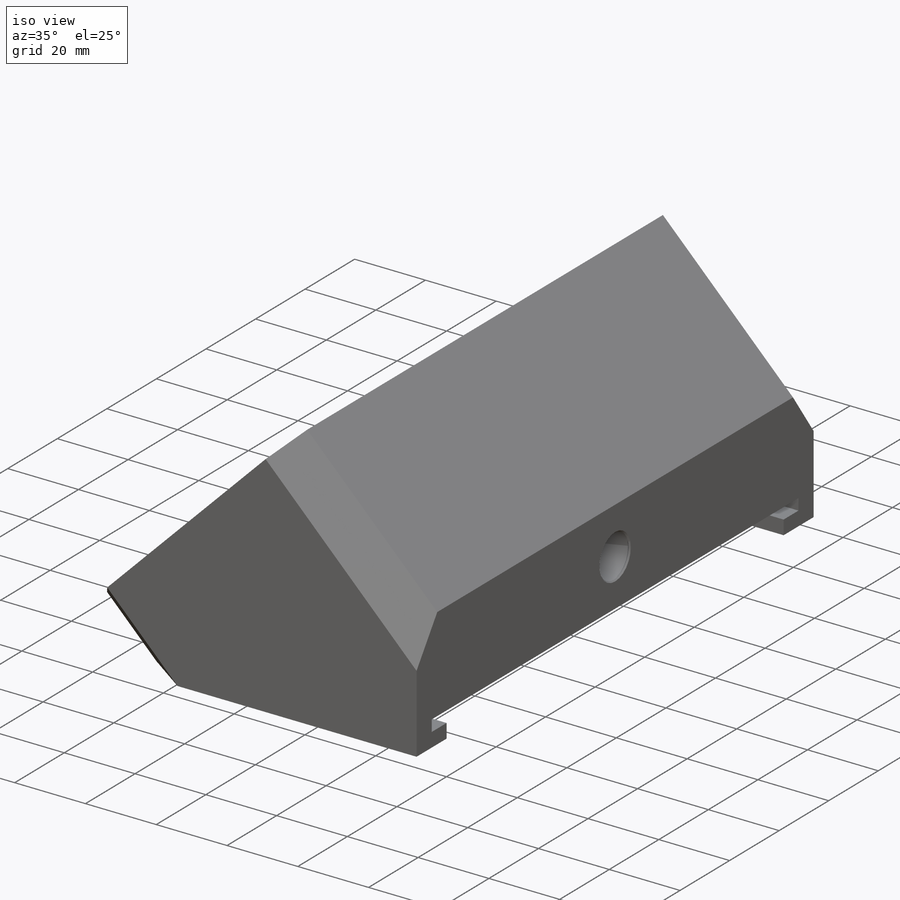
[diagram: iso view]
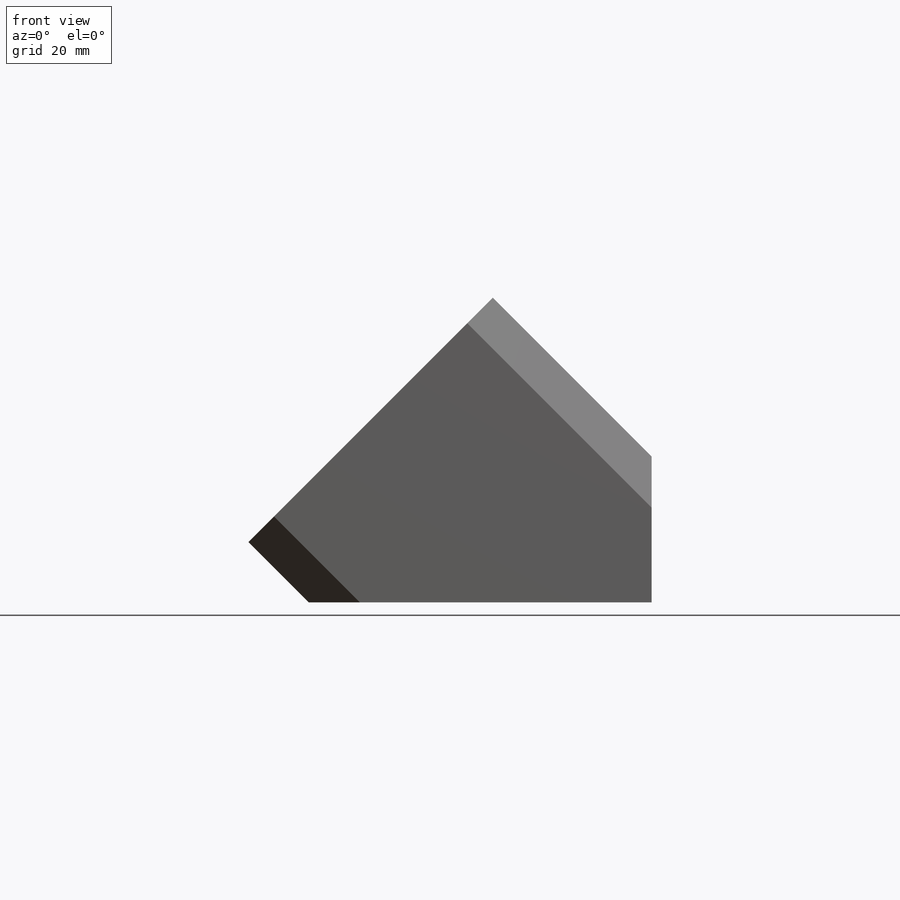
[diagram: front view]
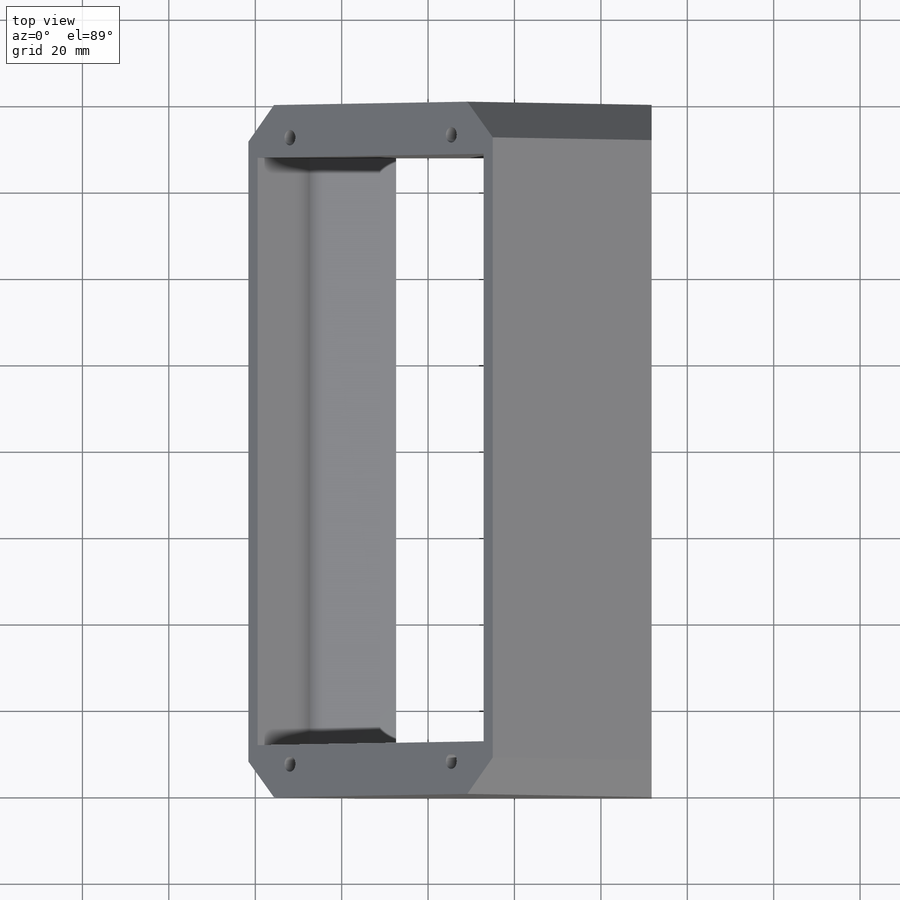
[diagram: top view]
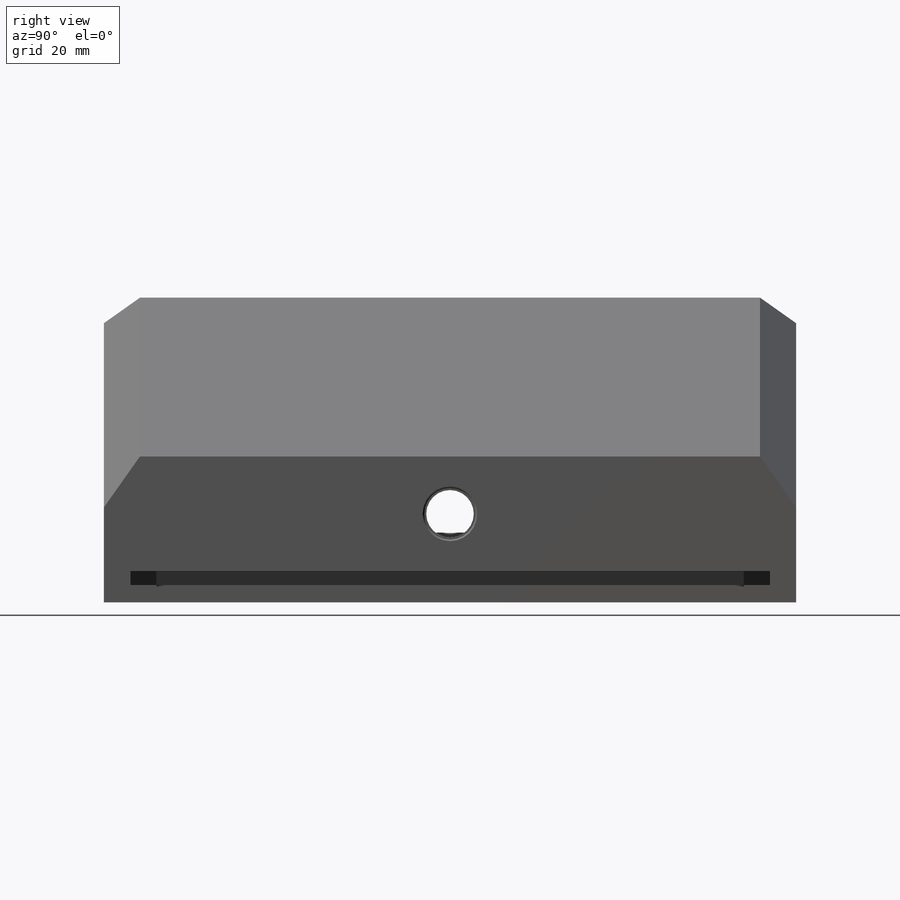
[diagram: right view]
SOLIDWORKS PART (.sldprt)
format: sldprt  version: not decoded by parser v0  size: 444,928 bytes
history: native  units: mm
features: sketch x16, extrude x8, cut_extrude x8, chamfer x2, material x1 (+16 scaffold rows collapsed)
feature tree (51):
  scaffold x16  (default folders/planes/origin — collapsed)
  material  "Material <not specified>"
  sketch  "Sketch1"  dims[D1=3.0mm]
  extrude  "Boss-Extrude1"  Depth=160.26mm
  sketch  "Sketch2"  dims[c1.D1=10.0mm c1.D2=3.0mm c2.D1=2.13mm]
  cut_extrude  "Cut-Extrude1"  Depth=156mm
  sketch  "Sketch11"  dims[c1.D1=0.0mm c1.D2=~156.00581mm c2.D1=145.0mm c2.D2=72.5mm]
  cut_extrude  "Cut-Extrude8"  Depth=6mm
  sketch  "Sketch17"  dims[D1=3.0mm]
  extrude  "Boss-Extrude14"  [1 undecoded]
  sketch  "Sketch19"  dims[c1.D4=146.0mm c1.D1=4.0mm c1.D2=3.2mm c1.D3=142.0mm c2.D4=71.0mm c2.D1=6.0mm c2.D2=3.2mm c2.D3=5.0mm c3.D4=74.0mm c3.D5=71.0mm c3.D6=74.0mm]
  cut_extrude  "Cut-Extrude13"  Depth=79.12mm
  sketch  "Sketch24"  dims[D1=2.13mm]
  cut_extrude  "Cut-Extrude15"  Depth=3mm
  sketch  "Sketch29"  dims[D1=20.0mm]
  extrude  "Boss-Extrude16"  [1 undecoded]
  chamfer  "Chamfer2"  Distance=8.36mm Angle=45deg
  sketch  "Sketch31"  dims[c1.D5=10.0mm c1.D1=15.0mm c1.D2=25.0mm c1.D3=15.0mm c2.D5=6.0mm c2.D1=10.0mm c2.D2=10.0mm c2.D3=20.0mm c2.D4=20.0mm c3.D2=10.0mm c3.D3=6.0mm c3.D4=6.0mm c3.D1=10.0mm c4.D2=10.0mm]
  cut_extrude  "Cut-Extrude19"  [1 undecoded]
  sketch  "Sketch32"  dims[D1=13.4mm D2=~26.569872mm]
  cut_extrude  "Cut-Extrude20"  Depth=10mm
  sketch  "Sketch33"  dims[D2=13.4mm D1=2.5mm]
  extrude  "Boss-Extrude17"  Depth=10mm
  sketch  "Sketch34"  dims[D1=3.5mm]
  extrude  "Boss-Extrude18"  Depth=2mm
  sketch  "Sketch35"  dims[D2=13.4mm D1=0.75mm]
  extrude  "Boss-Extrude19"  Depth=0.75mm
  chamfer  "Chamfer4"  Distance=0.375mm Angle=45deg
  sketch  "Sketch36"
  extrude  "Boss-Extrude20"  [1 undecoded]
  sketch  "Sketch37"
  extrude  "Boss-Extrude21"  [1 undecoded]
  sketch  "Sketch38"  dims[D3=5.1mm D1=40.0mm D2=40.0mm]
  cut_extrude  "Cut-Extrude23"  Depth=3.8mm
  sketch  "Sketch39"  dims[D1=3.6mm]
  cut_extrude  "Cut-Extrude24"  Depth=5mm
decode coverage: 27 of 34 modeling features carry decoded parameters
note: ~ marks probable driven/reference dimensions
note: 5 parameter values undecoded
summary: no parameter record found for 5 features
note: suppression state not decoded; provenance and decode notes live in map.json
